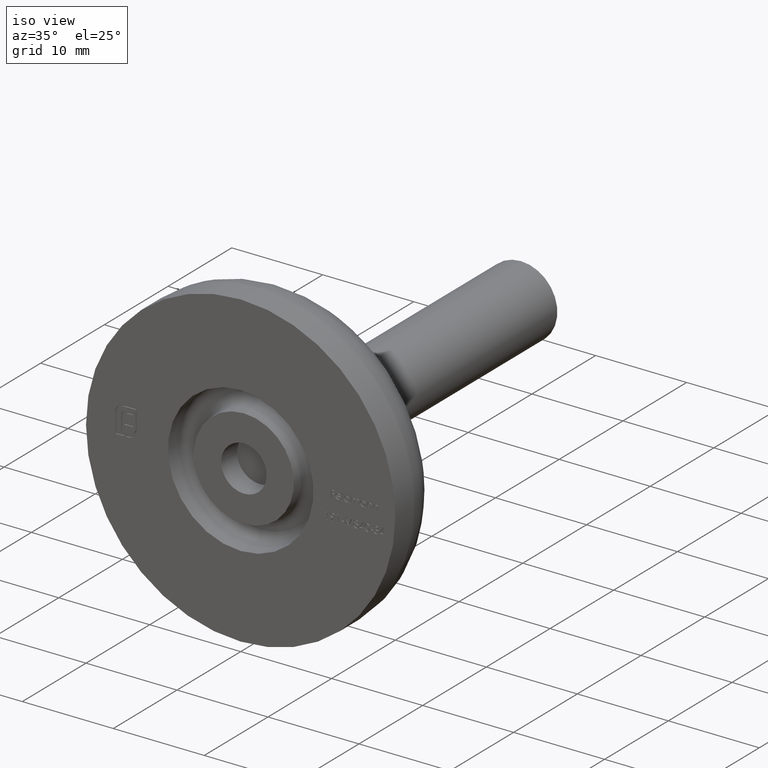
[diagram: clean part render]
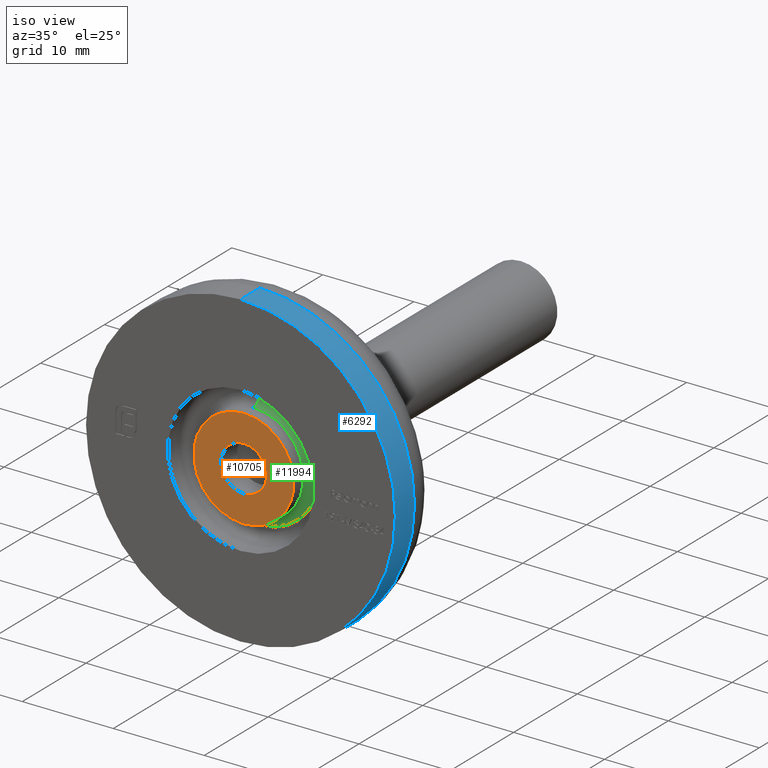
[diagram: same view with three faces highlighted in distinct colors, each labeled with its STEP entity id]
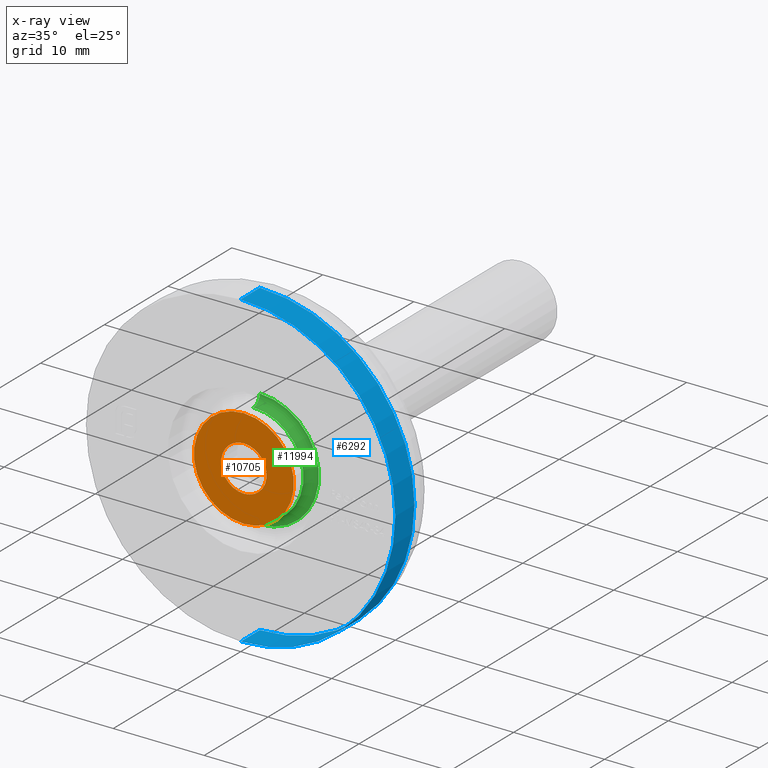
[diagram: x-ray of the same camera — body ghosted, the three highlighted faces saturated]
A machine part, iso view with three faces highlighted in distinct colors.
The next image is the same camera in x-ray (body ghosted, the three faces saturated) — at least one of them is partly hidden behind the body in this view.
Their STEP definitions:

[orange] entity #10705 — the highlighted planar face has unit normal (0, -1, -0).
#131 = AXIS2_PLACEMENT_3D ( 'NONE', #13977, #979, #4620 ) ;
#795 = CARTESIAN_POINT ( 'NONE',  ( 3.061616997868383141E-16, 0.5000000000000004441, -2.500000000000000000 ) ) ;
#817 = EDGE_CURVE ( 'NONE', #5887, #1992, #14464, .T. ) ;
#979 = DIRECTION ( 'NONE',  ( -0.000000000000000000, -1.000000000000000000, -0.000000000000000000 ) ) ;
#1283 = CARTESIAN_POINT ( 'NONE',  ( 0.000000000000000000, 0.5000000000000004441, 2.500000000000000000 ) ) ;
#1538 = DIRECTION ( 'NONE',  ( 0.000000000000000000, -1.000000000000000000, -0.000000000000000000 ) ) ;
#1992 = VERTEX_POINT ( 'NONE', #10115 ) ;
#2014 = AXIS2_PLACEMENT_3D ( 'NONE', #5089, #8668, #3844 ) ;
#2082 = FACE_BOUND ( 'NONE', #14935, .T. ) ;
#2183 = EDGE_CURVE ( 'NONE', #1992, #5887, #12250, .T. ) ;
#3197 = FACE_OUTER_BOUND ( 'NONE', #6769, .T. ) ;
#3396 = ORIENTED_EDGE ( 'NONE', *, *, #8003, .F. ) ;
#3844 = DIRECTION ( 'NONE',  ( 0.000000000000000000, 0.000000000000000000, -1.000000000000000000 ) ) ;
#3918 = DIRECTION ( 'NONE',  ( -0.000000000000000000, -1.000000000000000000, -0.000000000000000000 ) ) ;
#3992 = CIRCLE ( 'NONE', #12095, 2.500000000000000000 ) ;
#4620 = DIRECTION ( 'NONE',  ( 0.000000000000000000, 0.000000000000000000, -1.000000000000000000 ) ) ;
#5089 = CARTESIAN_POINT ( 'NONE',  ( 0.000000000000000000, 0.5000000000000004441, 0.000000000000000000 ) ) ;
#5286 = CARTESIAN_POINT ( 'NONE',  ( 0.000000000000000000, 0.5000000000000004441, 0.000000000000000000 ) ) ;
#5364 = ORIENTED_EDGE ( 'NONE', *, *, #817, .T. ) ;
#5514 = VERTEX_POINT ( 'NONE', #795 ) ;
#5887 = VERTEX_POINT ( 'NONE', #7686 ) ;
#6088 = CARTESIAN_POINT ( 'NONE',  ( 17.00000000000000000, 0.5000000000000000000, 0.000000000000000000 ) ) ;
#6360 = ORIENTED_EDGE ( 'NONE', *, *, #2183, .T. ) ;
#6416 = CIRCLE ( 'NONE', #6872, 2.500000000000000000 ) ;
#6535 = VERTEX_POINT ( 'NONE', #1283 ) ;
#6769 = EDGE_LOOP ( 'NONE', ( #6360, #5364 ) ) ;
#6872 = AXIS2_PLACEMENT_3D ( 'NONE', #5286, #3918, #9985 ) ;
#7157 = EDGE_CURVE ( 'NONE', #5514, #6535, #6416, .T. ) ;
#7686 = CARTESIAN_POINT ( 'NONE',  ( 6.735557395310442023E-16, 0.5000000000000004441, -5.500000000000000000 ) ) ;
#8003 = EDGE_CURVE ( 'NONE', #6535, #5514, #3992, .T. ) ;
#8505 = DIRECTION ( 'NONE',  ( 0.000000000000000000, 0.000000000000000000, -1.000000000000000000 ) ) ;
#8668 = DIRECTION ( 'NONE',  ( -0.000000000000000000, -1.000000000000000000, -0.000000000000000000 ) ) ;
#9715 = DIRECTION ( 'NONE',  ( 0.000000000000000000, 0.000000000000000000, -1.000000000000000000 ) ) ;
#9815 = PLANE ( 'NONE',  #11406 ) ;
#9985 = DIRECTION ( 'NONE',  ( 0.000000000000000000, 0.000000000000000000, -1.000000000000000000 ) ) ;
#10115 = CARTESIAN_POINT ( 'NONE',  ( 0.000000000000000000, 0.5000000000000004441, 5.500000000000000000 ) ) ;
#10705 = ADVANCED_FACE ( 'NONE', ( #2082, #3197 ), #9815, .T. ) ;
#10755 = DIRECTION ( 'NONE',  ( -0.000000000000000000, -1.000000000000000000, -0.000000000000000000 ) ) ;
#11406 = AXIS2_PLACEMENT_3D ( 'NONE', #6088, #1538, #9715 ) ;
#12095 = AXIS2_PLACEMENT_3D ( 'NONE', #12261, #10755, #8505 ) ;
#12250 = CIRCLE ( 'NONE', #2014, 5.500000000000000000 ) ;
#12261 = CARTESIAN_POINT ( 'NONE',  ( 0.000000000000000000, 0.5000000000000004441, 0.000000000000000000 ) ) ;
#13977 = CARTESIAN_POINT ( 'NONE',  ( 0.000000000000000000, 0.5000000000000004441, 0.000000000000000000 ) ) ;
#14464 = CIRCLE ( 'NONE', #131, 5.500000000000000000 ) ;
#14907 = ORIENTED_EDGE ( 'NONE', *, *, #7157, .F. ) ;
#14935 = EDGE_LOOP ( 'NONE', ( #3396, #14907 ) ) ;

[blue] entity #6292 — the highlighted cylindrical surface (partial cylindrical patch) has radius 17 mm, axis along (-0, -1, -0).
#447 = DIRECTION ( 'NONE',  ( 0.000000000000000000, 0.000000000000000000, 1.000000000000000000 ) ) ;
#843 = EDGE_CURVE ( 'NONE', #5399, #1057, #13722, .T. ) ;
#1057 = VERTEX_POINT ( 'NONE', #12553 ) ;
#1513 = DIRECTION ( 'NONE',  ( 0.000000000000000000, 0.000000000000000000, -1.000000000000000000 ) ) ;
#1624 = CIRCLE ( 'NONE', #10822, 17.00000000000000000 ) ;
#2199 = ORIENTED_EDGE ( 'NONE', *, *, #843, .T. ) ;
#2298 = DIRECTION ( 'NONE',  ( -0.000000000000000000, -1.000000000000000000, -0.000000000000000000 ) ) ;
#2360 = DIRECTION ( 'NONE',  ( 0.000000000000000000, 0.000000000000000000, -1.000000000000000000 ) ) ;
#2996 = CARTESIAN_POINT ( 'NONE',  ( 0.000000000000000000, 0.000000000000000000, 0.000000000000000000 ) ) ;
#3646 = FACE_OUTER_BOUND ( 'NONE', #11778, .T. ) ;
#3669 = CARTESIAN_POINT ( 'NONE',  ( 0.000000000000000000, 1.836970198721010336E-17, 0.000000000000000000 ) ) ;
#4214 = EDGE_CURVE ( 'NONE', #5797, #1057, #11226, .T. ) ;
#4514 = CARTESIAN_POINT ( 'NONE',  ( 2.081899558550500280E-15, 2.999999999999998224, 17.00000000000000000 ) ) ;
#5399 = VERTEX_POINT ( 'NONE', #4514 ) ;
#5664 = VECTOR ( 'NONE', #2298, 1000.000000000000000 ) ;
#5797 = VERTEX_POINT ( 'NONE', #5816 ) ;
#5816 = CARTESIAN_POINT ( 'NONE',  ( 0.000000000000000000, 1.836970198721010336E-17, -17.00000000000000000 ) ) ;
#5896 = CARTESIAN_POINT ( 'NONE',  ( 0.000000000000000000, 0.000000000000000000, -17.00000000000000000 ) ) ;
#6099 = EDGE_CURVE ( 'NONE', #7720, #5399, #1624, .T. ) ;
#6292 = ADVANCED_FACE ( 'NONE', ( #3646 ), #12859, .T. ) ;
#6366 = DIRECTION ( 'NONE',  ( -0.000000000000000000, -1.000000000000000000, -0.000000000000000000 ) ) ;
#6472 = AXIS2_PLACEMENT_3D ( 'NONE', #2996, #10107, #2360 ) ;
#7720 = VERTEX_POINT ( 'NONE', #11957 ) ;
#8234 = DIRECTION ( 'NONE',  ( -0.000000000000000000, -1.000000000000000000, -0.000000000000000000 ) ) ;
#8599 = CARTESIAN_POINT ( 'NONE',  ( 0.000000000000000000, 2.999999999999998224, 0.000000000000000000 ) ) ;
#9091 = VECTOR ( 'NONE', #8234, 1000.000000000000000 ) ;
#9680 = EDGE_CURVE ( 'NONE', #7720, #5797, #12785, .T. ) ;
#10107 = DIRECTION ( 'NONE',  ( -0.000000000000000000, -1.000000000000000000, -0.000000000000000000 ) ) ;
#10822 = AXIS2_PLACEMENT_3D ( 'NONE', #8599, #6366, #447 ) ;
#10913 = ORIENTED_EDGE ( 'NONE', *, *, #6099, .T. ) ;
#11226 = CIRCLE ( 'NONE', #13895, 17.00000000000000000 ) ;
#11655 = ORIENTED_EDGE ( 'NONE', *, *, #4214, .F. ) ;
#11778 = EDGE_LOOP ( 'NONE', ( #10913, #2199, #11655, #12197 ) ) ;
#11957 = CARTESIAN_POINT ( 'NONE',  ( 0.000000000000000000, 2.999999999999998224, -17.00000000000000000 ) ) ;
#12197 = ORIENTED_EDGE ( 'NONE', *, *, #9680, .F. ) ;
#12553 = CARTESIAN_POINT ( 'NONE',  ( 2.081899558550500280E-15, 1.836970198721010336E-17, 17.00000000000000000 ) ) ;
#12785 = LINE ( 'NONE', #5896, #9091 ) ;
#12859 = CYLINDRICAL_SURFACE ( 'NONE', #6472, 17.00000000000000000 ) ;
#13722 = LINE ( 'NONE', #15191, #5664 ) ;
#13895 = AXIS2_PLACEMENT_3D ( 'NONE', #3669, #14420, #1513 ) ;
#14420 = DIRECTION ( 'NONE',  ( -0.000000000000000000, -1.000000000000000000, -0.000000000000000000 ) ) ;
#15191 = CARTESIAN_POINT ( 'NONE',  ( 2.081899558550500280E-15, 0.000000000000000000, 17.00000000000000000 ) ) ;

[green] entity #11994 — the highlighted toroidal blend (fillet) surface has major radius 6.5 mm and minor (blend) radius 1 mm.
#83 = CARTESIAN_POINT ( 'NONE',  ( 0.000000000000000000, 2.000000000000001776, 0.000000000000000000 ) ) ;
#822 = DIRECTION ( 'NONE',  ( 0.000000000000000000, 0.000000000000000000, -1.000000000000000000 ) ) ;
#855 = AXIS2_PLACEMENT_3D ( 'NONE', #14430, #8557, #2703 ) ;
#1378 = CARTESIAN_POINT ( 'NONE',  ( 0.000000000000000000, 2.000000000000001776, 5.500000000000000000 ) ) ;
#1863 = CARTESIAN_POINT ( 'NONE',  ( 0.000000000000000000, 3.000000000000000888, -6.500000000000000000 ) ) ;
#2582 = EDGE_CURVE ( 'NONE', #15134, #15113, #11805, .T. ) ;
#2703 = DIRECTION ( 'NONE',  ( -1.224646799147353454E-16, 0.000000000000000000, -1.000000000000000000 ) ) ;
#2813 = DIRECTION ( 'NONE',  ( -1.000000000000000000, -0.000000000000000000, -0.000000000000000000 ) ) ;
#3111 = CIRCLE ( 'NONE', #4943, 6.500000000000000000 ) ;
#3162 = DIRECTION ( 'NONE',  ( 0.000000000000000000, 0.000000000000000000, 1.000000000000000000 ) ) ;
#3424 = DIRECTION ( 'NONE',  ( 0.000000000000000000, -1.000000000000000000, 0.000000000000000000 ) ) ;
#3912 = ORIENTED_EDGE ( 'NONE', *, *, #7756, .F. ) ;
#3946 = AXIS2_PLACEMENT_3D ( 'NONE', #6789, #6839, #822 ) ;
#4286 = CIRCLE ( 'NONE', #14564, 1.000000000000000000 ) ;
#4864 = CARTESIAN_POINT ( 'NONE',  ( 0.000000000000000000, 3.000000000000000000, 0.000000000000000000 ) ) ;
#4943 = AXIS2_PLACEMENT_3D ( 'NONE', #4864, #11902, #7322 ) ;
#5815 = VERTEX_POINT ( 'NONE', #1863 ) ;
#6626 = CARTESIAN_POINT ( 'NONE',  ( 0.000000000000000000, 2.000000000000001776, -6.500000000000000000 ) ) ;
#6764 = AXIS2_PLACEMENT_3D ( 'NONE', #83, #3424, #7235 ) ;
#6789 = CARTESIAN_POINT ( 'NONE',  ( 0.000000000000000000, 2.000000000000001776, 0.000000000000000000 ) ) ;
#6839 = DIRECTION ( 'NONE',  ( 0.000000000000000000, -1.000000000000000000, 0.000000000000000000 ) ) ;
#7235 = DIRECTION ( 'NONE',  ( 0.000000000000000000, 0.000000000000000000, -1.000000000000000000 ) ) ;
#7322 = DIRECTION ( 'NONE',  ( 0.000000000000000000, 0.000000000000000000, -1.000000000000000000 ) ) ;
#7415 = ORIENTED_EDGE ( 'NONE', *, *, #10921, .T. ) ;
#7756 = EDGE_CURVE ( 'NONE', #15113, #13255, #10621, .T. ) ;
#8557 = DIRECTION ( 'NONE',  ( 1.000000000000000000, 0.000000000000000000, -1.224646799147353207E-16 ) ) ;
#10621 = CIRCLE ( 'NONE', #855, 1.000000000000000000 ) ;
#10921 = EDGE_CURVE ( 'NONE', #15134, #5815, #4286, .T. ) ;
#11805 = CIRCLE ( 'NONE', #6764, 5.500000000000000000 ) ;
#11902 = DIRECTION ( 'NONE',  ( -0.000000000000000000, 1.000000000000000000, -0.000000000000000000 ) ) ;
#11994 = ADVANCED_FACE ( 'NONE', ( #12951 ), #15137, .F. ) ;
#12398 = EDGE_LOOP ( 'NONE', ( #3912, #13789, #7415, #14099 ) ) ;
#12951 = FACE_OUTER_BOUND ( 'NONE', #12398, .T. ) ;
#13197 = CARTESIAN_POINT ( 'NONE',  ( 6.735557395310442023E-16, 2.000000000000001776, -5.500000000000000000 ) ) ;
#13255 = VERTEX_POINT ( 'NONE', #14413 ) ;
#13789 = ORIENTED_EDGE ( 'NONE', *, *, #2582, .F. ) ;
#14099 = ORIENTED_EDGE ( 'NONE', *, *, #15095, .F. ) ;
#14413 = CARTESIAN_POINT ( 'NONE',  ( 7.960204194457795477E-16, 3.000000000000000888, 6.500000000000000000 ) ) ;
#14430 = CARTESIAN_POINT ( 'NONE',  ( 7.960204194457795477E-16, 2.000000000000001776, 6.500000000000000000 ) ) ;
#14564 = AXIS2_PLACEMENT_3D ( 'NONE', #6626, #2813, #3162 ) ;
#15095 = EDGE_CURVE ( 'NONE', #13255, #5815, #3111, .T. ) ;
#15113 = VERTEX_POINT ( 'NONE', #1378 ) ;
#15134 = VERTEX_POINT ( 'NONE', #13197 ) ;
#15137 = TOROIDAL_SURFACE ( 'NONE', #3946, 6.500000000000000000, 1.000000000000000000 ) ;